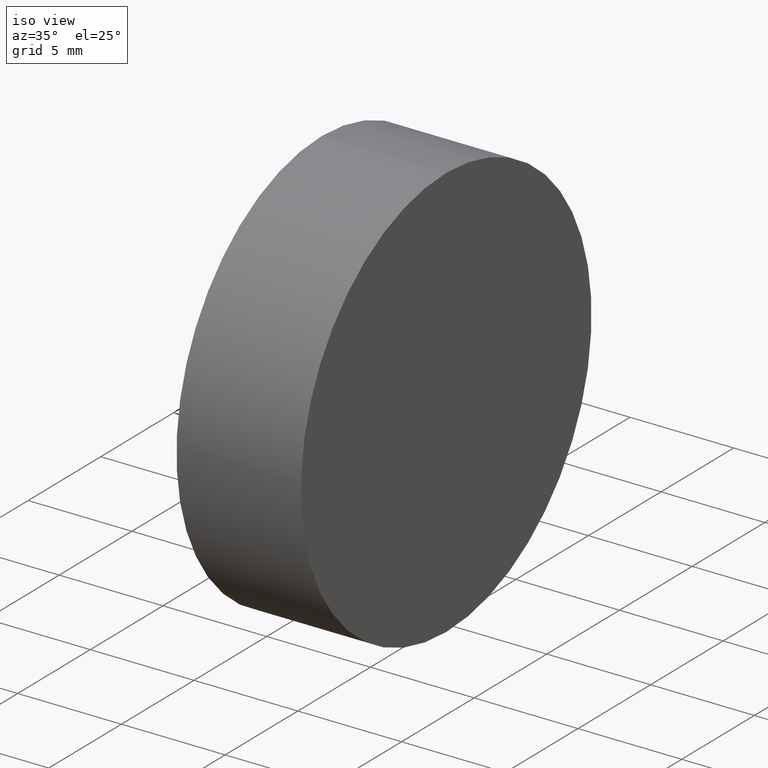
[diagram: clean part render]
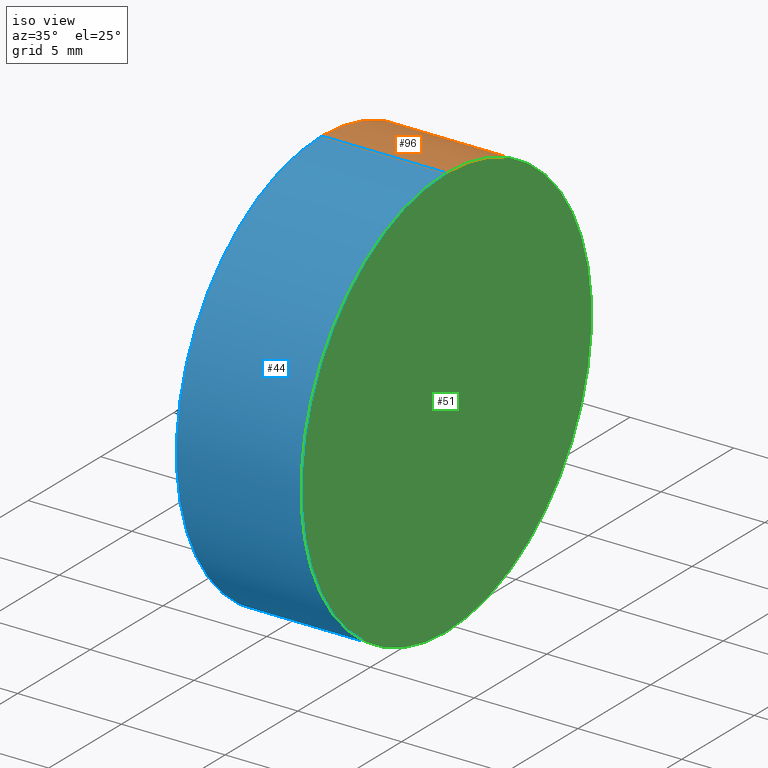
[diagram: same view with three faces highlighted in distinct colors, each labeled with its STEP entity id]
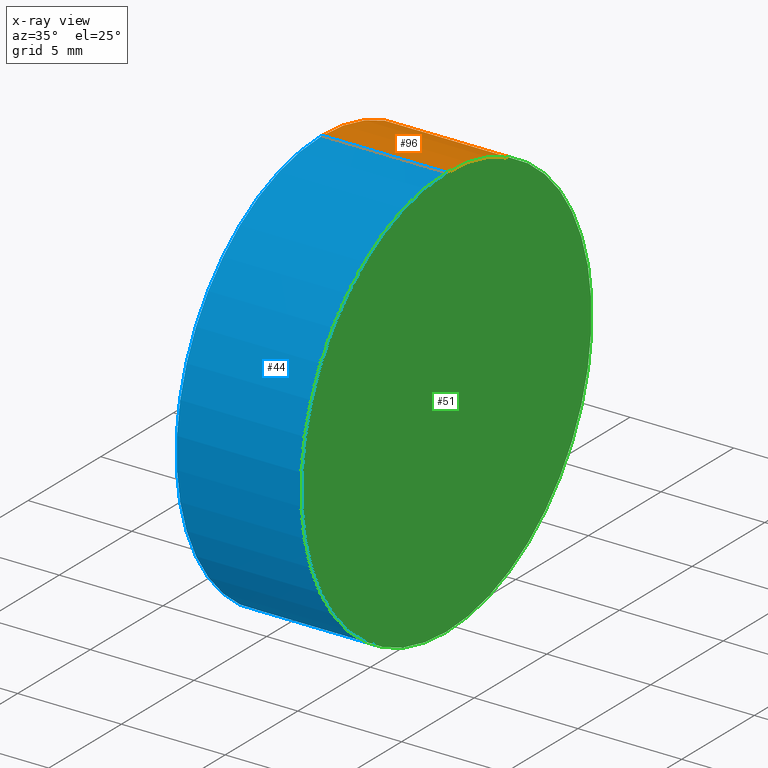
[diagram: x-ray of the same camera — body ghosted, the three highlighted faces saturated]
A machine part, iso view with three faces highlighted in distinct colors.
The next image is the same camera in x-ray (body ghosted, the three faces saturated) — at least one of them is partly hidden behind the body in this view.
Their STEP definitions:

[orange] entity #96 — the highlighted cylindrical surface (partial cylindrical patch) has radius 10 mm, axis along (-1, -0, -0).
#1 = VECTOR ( 'NONE', #36, 1000.000000000000000 ) ;
#4 = FACE_OUTER_BOUND ( 'NONE', #98, .T. ) ;
#5 = AXIS2_PLACEMENT_3D ( 'NONE', #118, #88, #33 ) ;
#6 = EDGE_CURVE ( 'NONE', #40, #79, #78, .T. ) ;
#10 = DIRECTION ( 'NONE',  ( -1.000000000000000000, -0.0000000000000000000, -0.0000000000000000000 ) ) ;
#23 = ORIENTED_EDGE ( 'NONE', *, *, #132, .T. ) ;
#24 = AXIS2_PLACEMENT_3D ( 'NONE', #86, #35, #117 ) ;
#26 = DIRECTION ( 'NONE',  ( -1.000000000000000000, -0.0000000000000000000, -0.0000000000000000000 ) ) ;
#27 = CIRCLE ( 'NONE', #5, 10.00000000000000200 ) ;
#33 = DIRECTION ( 'NONE',  ( 0.0000000000000000000, 0.0000000000000000000, 1.000000000000000000 ) ) ;
#34 = VERTEX_POINT ( 'NONE', #100 ) ;
#35 = DIRECTION ( 'NONE',  ( -1.000000000000000000, -0.0000000000000000000, -0.0000000000000000000 ) ) ;
#36 = DIRECTION ( 'NONE',  ( -1.000000000000000000, -0.0000000000000000000, -0.0000000000000000000 ) ) ;
#38 = CYLINDRICAL_SURFACE ( 'NONE', #24, 10.00000000000000200 ) ;
#40 = VERTEX_POINT ( 'NONE', #123 ) ;
#42 = ORIENTED_EDGE ( 'NONE', *, *, #6, .T. ) ;
#49 = VECTOR ( 'NONE', #10, 1000.000000000000000 ) ;
#54 = ORIENTED_EDGE ( 'NONE', *, *, #69, .F. ) ;
#58 = LINE ( 'NONE', #126, #49 ) ;
#67 = CARTESIAN_POINT ( 'NONE',  ( 136.1008676357075700, 38.64658967450770900, -10.00000000000000200 ) ) ;
#69 = EDGE_CURVE ( 'NONE', #135, #34, #27, .T. ) ;
#70 = DIRECTION ( 'NONE',  ( 0.0000000000000000000, 0.0000000000000000000, 1.000000000000000000 ) ) ;
#71 = LINE ( 'NONE', #77, #1 ) ;
#77 = CARTESIAN_POINT ( 'NONE',  ( 127.0004009963080200, 38.64658967450770900, 10.00000000000000200 ) ) ;
#78 = CIRCLE ( 'NONE', #136, 10.00000000000000200 ) ;
#79 = VERTEX_POINT ( 'NONE', #67 ) ;
#86 = CARTESIAN_POINT ( 'NONE',  ( 127.0004009963080200, 38.64658967450770900, 0.0000000000000000000 ) ) ;
#88 = DIRECTION ( 'NONE',  ( -1.000000000000000000, -0.0000000000000000000, -0.0000000000000000000 ) ) ;
#89 = EDGE_CURVE ( 'NONE', #40, #135, #71, .T. ) ;
#96 = ADVANCED_FACE ( 'NONE', ( #4 ), #38, .T. ) ;
#98 = EDGE_LOOP ( 'NONE', ( #42, #23, #54, #131 ) ) ;
#100 = CARTESIAN_POINT ( 'NONE',  ( 130.1008676357075700, 38.64658967450770900, -10.00000000000000200 ) ) ;
#111 = CARTESIAN_POINT ( 'NONE',  ( 136.1008676357075700, 38.64658967450770900, 0.0000000000000000000 ) ) ;
#117 = DIRECTION ( 'NONE',  ( 0.0000000000000000000, 0.0000000000000000000, 1.000000000000000000 ) ) ;
#118 = CARTESIAN_POINT ( 'NONE',  ( 130.1008676357075700, 38.64658967450770900, 0.0000000000000000000 ) ) ;
#123 = CARTESIAN_POINT ( 'NONE',  ( 136.1008676357075700, 38.64658967450770900, 10.00000000000000200 ) ) ;
#126 = CARTESIAN_POINT ( 'NONE',  ( 127.0004009963080200, 38.64658967450770900, -10.00000000000000200 ) ) ;
#131 = ORIENTED_EDGE ( 'NONE', *, *, #89, .F. ) ;
#132 = EDGE_CURVE ( 'NONE', #79, #34, #58, .T. ) ;
#135 = VERTEX_POINT ( 'NONE', #138 ) ;
#136 = AXIS2_PLACEMENT_3D ( 'NONE', #111, #26, #70 ) ;
#138 = CARTESIAN_POINT ( 'NONE',  ( 130.1008676357075700, 38.64658967450770900, 10.00000000000000200 ) ) ;

[blue] entity #44 — the highlighted cylindrical surface (partial cylindrical patch) has radius 10 mm, axis along (-1, -0, -0).
#1 = VECTOR ( 'NONE', #36, 1000.000000000000000 ) ;
#2 = EDGE_CURVE ( 'NONE', #79, #40, #60, .T. ) ;
#7 = DIRECTION ( 'NONE',  ( -1.000000000000000000, -0.0000000000000000000, -0.0000000000000000000 ) ) ;
#10 = DIRECTION ( 'NONE',  ( -1.000000000000000000, -0.0000000000000000000, -0.0000000000000000000 ) ) ;
#11 = CYLINDRICAL_SURFACE ( 'NONE', #119, 10.00000000000000200 ) ;
#21 = AXIS2_PLACEMENT_3D ( 'NONE', #105, #32, #55 ) ;
#25 = ORIENTED_EDGE ( 'NONE', *, *, #62, .F. ) ;
#31 = FACE_OUTER_BOUND ( 'NONE', #64, .T. ) ;
#32 = DIRECTION ( 'NONE',  ( -1.000000000000000000, -0.0000000000000000000, -0.0000000000000000000 ) ) ;
#34 = VERTEX_POINT ( 'NONE', #100 ) ;
#36 = DIRECTION ( 'NONE',  ( -1.000000000000000000, -0.0000000000000000000, -0.0000000000000000000 ) ) ;
#40 = VERTEX_POINT ( 'NONE', #123 ) ;
#44 = ADVANCED_FACE ( 'NONE', ( #31 ), #11, .T. ) ;
#45 = DIRECTION ( 'NONE',  ( 0.0000000000000000000, 0.0000000000000000000, 1.000000000000000000 ) ) ;
#49 = VECTOR ( 'NONE', #10, 1000.000000000000000 ) ;
#55 = DIRECTION ( 'NONE',  ( 0.0000000000000000000, 0.0000000000000000000, 1.000000000000000000 ) ) ;
#56 = DIRECTION ( 'NONE',  ( 0.0000000000000000000, 0.0000000000000000000, 1.000000000000000000 ) ) ;
#58 = LINE ( 'NONE', #126, #49 ) ;
#60 = CIRCLE ( 'NONE', #91, 10.00000000000000200 ) ;
#61 = CARTESIAN_POINT ( 'NONE',  ( 136.1008676357075700, 38.64658967450770900, 0.0000000000000000000 ) ) ;
#62 = EDGE_CURVE ( 'NONE', #34, #135, #130, .T. ) ;
#64 = EDGE_LOOP ( 'NONE', ( #127, #74, #109, #25 ) ) ;
#67 = CARTESIAN_POINT ( 'NONE',  ( 136.1008676357075700, 38.64658967450770900, -10.00000000000000200 ) ) ;
#71 = LINE ( 'NONE', #77, #1 ) ;
#74 = ORIENTED_EDGE ( 'NONE', *, *, #2, .T. ) ;
#77 = CARTESIAN_POINT ( 'NONE',  ( 127.0004009963080200, 38.64658967450770900, 10.00000000000000200 ) ) ;
#79 = VERTEX_POINT ( 'NONE', #67 ) ;
#89 = EDGE_CURVE ( 'NONE', #40, #135, #71, .T. ) ;
#91 = AXIS2_PLACEMENT_3D ( 'NONE', #61, #7, #45 ) ;
#100 = CARTESIAN_POINT ( 'NONE',  ( 130.1008676357075700, 38.64658967450770900, -10.00000000000000200 ) ) ;
#105 = CARTESIAN_POINT ( 'NONE',  ( 130.1008676357075700, 38.64658967450770900, 0.0000000000000000000 ) ) ;
#109 = ORIENTED_EDGE ( 'NONE', *, *, #89, .T. ) ;
#113 = CARTESIAN_POINT ( 'NONE',  ( 127.0004009963080200, 38.64658967450770900, 0.0000000000000000000 ) ) ;
#119 = AXIS2_PLACEMENT_3D ( 'NONE', #113, #124, #56 ) ;
#123 = CARTESIAN_POINT ( 'NONE',  ( 136.1008676357075700, 38.64658967450770900, 10.00000000000000200 ) ) ;
#124 = DIRECTION ( 'NONE',  ( -1.000000000000000000, -0.0000000000000000000, -0.0000000000000000000 ) ) ;
#126 = CARTESIAN_POINT ( 'NONE',  ( 127.0004009963080200, 38.64658967450770900, -10.00000000000000200 ) ) ;
#127 = ORIENTED_EDGE ( 'NONE', *, *, #132, .F. ) ;
#130 = CIRCLE ( 'NONE', #21, 10.00000000000000200 ) ;
#132 = EDGE_CURVE ( 'NONE', #79, #34, #58, .T. ) ;
#135 = VERTEX_POINT ( 'NONE', #138 ) ;
#138 = CARTESIAN_POINT ( 'NONE',  ( 130.1008676357075700, 38.64658967450770900, 10.00000000000000200 ) ) ;

[green] entity #51 — the highlighted planar face has unit normal (-1, 0, -0).
#2 = EDGE_CURVE ( 'NONE', #79, #40, #60, .T. ) ;
#6 = EDGE_CURVE ( 'NONE', #40, #79, #78, .T. ) ;
#7 = DIRECTION ( 'NONE',  ( -1.000000000000000000, -0.0000000000000000000, -0.0000000000000000000 ) ) ;
#26 = DIRECTION ( 'NONE',  ( -1.000000000000000000, -0.0000000000000000000, -0.0000000000000000000 ) ) ;
#28 = DIRECTION ( 'NONE',  ( -0.0000000000000000000, 0.0000000000000000000, 1.000000000000000000 ) ) ;
#40 = VERTEX_POINT ( 'NONE', #123 ) ;
#45 = DIRECTION ( 'NONE',  ( 0.0000000000000000000, 0.0000000000000000000, 1.000000000000000000 ) ) ;
#46 = PLANE ( 'NONE',  #82 ) ;
#51 = ADVANCED_FACE ( 'NONE', ( #85 ), #46, .F. ) ;
#59 = ORIENTED_EDGE ( 'NONE', *, *, #6, .F. ) ;
#60 = CIRCLE ( 'NONE', #91, 10.00000000000000200 ) ;
#61 = CARTESIAN_POINT ( 'NONE',  ( 136.1008676357075700, 38.64658967450770900, 0.0000000000000000000 ) ) ;
#67 = CARTESIAN_POINT ( 'NONE',  ( 136.1008676357075700, 38.64658967450770900, -10.00000000000000200 ) ) ;
#70 = DIRECTION ( 'NONE',  ( 0.0000000000000000000, 0.0000000000000000000, 1.000000000000000000 ) ) ;
#78 = CIRCLE ( 'NONE', #136, 10.00000000000000200 ) ;
#79 = VERTEX_POINT ( 'NONE', #67 ) ;
#80 = ORIENTED_EDGE ( 'NONE', *, *, #2, .F. ) ;
#82 = AXIS2_PLACEMENT_3D ( 'NONE', #139, #115, #28 ) ;
#85 = FACE_OUTER_BOUND ( 'NONE', #114, .T. ) ;
#91 = AXIS2_PLACEMENT_3D ( 'NONE', #61, #7, #45 ) ;
#111 = CARTESIAN_POINT ( 'NONE',  ( 136.1008676357075700, 38.64658967450770900, 0.0000000000000000000 ) ) ;
#114 = EDGE_LOOP ( 'NONE', ( #59, #80 ) ) ;
#115 = DIRECTION ( 'NONE',  ( -1.000000000000000000, 0.0000000000000000000, -0.0000000000000000000 ) ) ;
#123 = CARTESIAN_POINT ( 'NONE',  ( 136.1008676357075700, 38.64658967450770900, 10.00000000000000200 ) ) ;
#136 = AXIS2_PLACEMENT_3D ( 'NONE', #111, #26, #70 ) ;
#139 = CARTESIAN_POINT ( 'NONE',  ( 136.1008676357075700, 48.64658967450770900, 0.0000000000000000000 ) ) ;